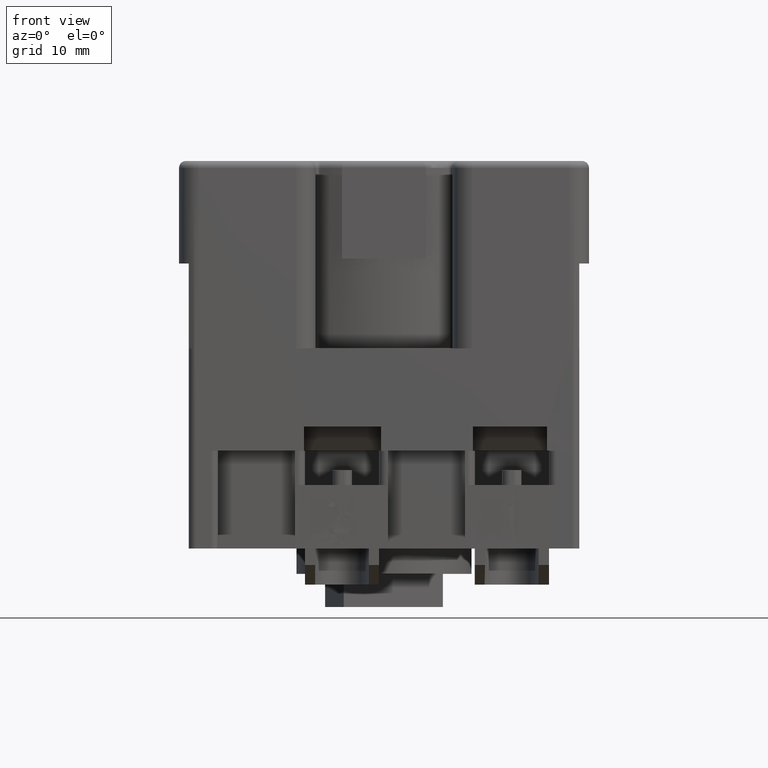
[diagram: clean part render]
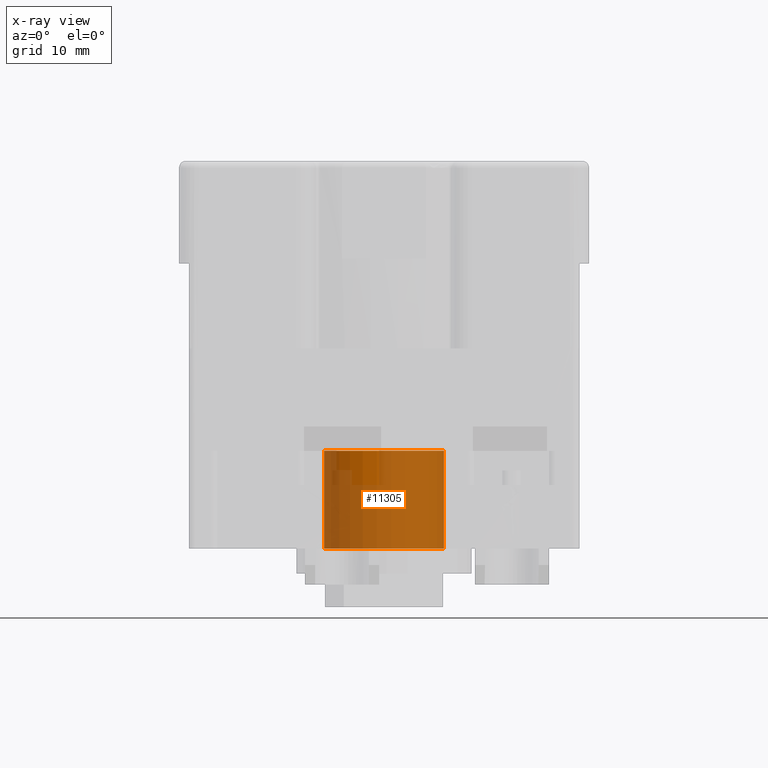
[diagram: x-ray — body ghosted, one internal face saturated and labeled with its STEP entity id]
A machine part, front view, then the same camera in x-ray: the body is ghosted and one INTERNAL B-rep face — a face not visible from any outside direction — is saturated and labeled: STEP entity #11305.
In plain terms, the highlighted cylindrical surface (bore or boss wall) has radius 6.1308 mm, axis along (0, 0, -1).
Its self-contained STEP definition (entity closure, byte-faithful):
#11251=CARTESIAN_POINT('',(6.130804400286079,5.551115E-014,-29.700000000000003));
#11252=VERTEX_POINT('',#11251);
#11253=CARTESIAN_POINT('',(0.0,5.551115E-014,-29.700000000000003));
#11254=DIRECTION('',(0.0,0.0,1.0));
#11255=DIRECTION('',(1.0,0.0,0.0));
#11256=AXIS2_PLACEMENT_3D('',#11253,#11254,#11255);
#11257=CIRCLE('',#11256,6.130804400286079);
#11258=EDGE_CURVE('',#11252,#11252,#11257,.T.);
#11286=CARTESIAN_POINT('',(0.0,5.551115E-014,-28.399999999999999));
#11287=DIRECTION('',(0.0,0.0,-1.0));
#11288=DIRECTION('',(-1.0,0.0,0.0));
#11289=AXIS2_PLACEMENT_3D('',#11286,#11287,#11288);
#11290=CYLINDRICAL_SURFACE('',#11289,6.130804400286079);
#11291=ORIENTED_EDGE('',*,*,#11258,.T.);
#11292=EDGE_LOOP('',(#11291));
#11293=FACE_OUTER_BOUND('',#11292,.T.);
#11294=CARTESIAN_POINT('',(6.13080440028318,0.000005961162739,-39.700000000000003));
#11295=VERTEX_POINT('',#11294);
#11296=CARTESIAN_POINT('',(0.0,5.551115E-014,-39.700000000000003));
#11297=DIRECTION('',(0.0,0.0,-1.0));
#11298=DIRECTION('',(0.999999999999527,0.000000972329615,0.0));
#11299=AXIS2_PLACEMENT_3D('',#11296,#11297,#11298);
#11300=CIRCLE('',#11299,6.13080440028608);
#11301=EDGE_CURVE('',#11295,#11295,#11300,.T.);
#11302=ORIENTED_EDGE('',*,*,#11301,.T.);
#11303=EDGE_LOOP('',(#11302));
#11304=FACE_BOUND('',#11303,.T.);
#11305=ADVANCED_FACE('',(#11293,#11304),#11290,.F.);